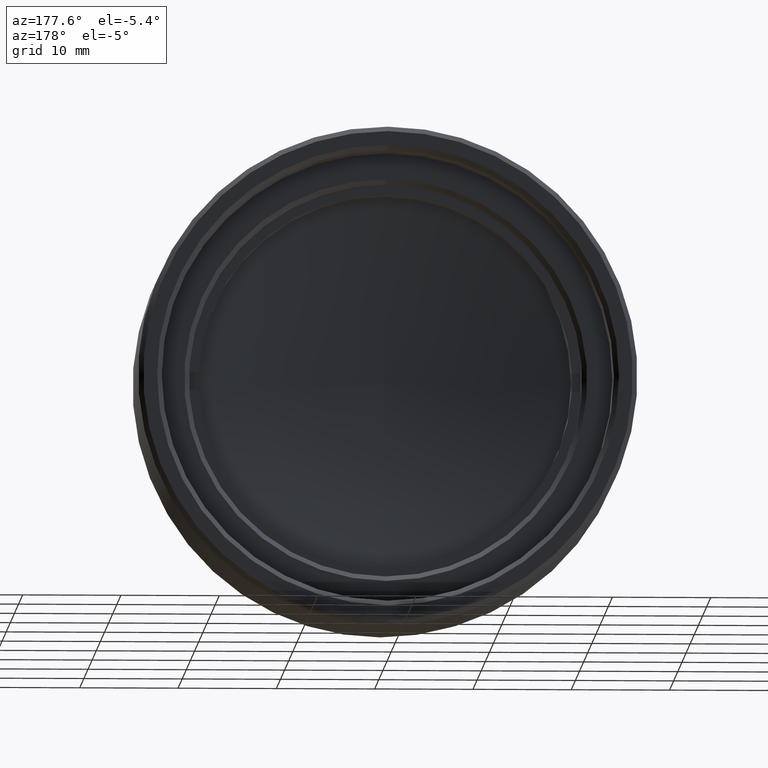
[diagram: clean part render]
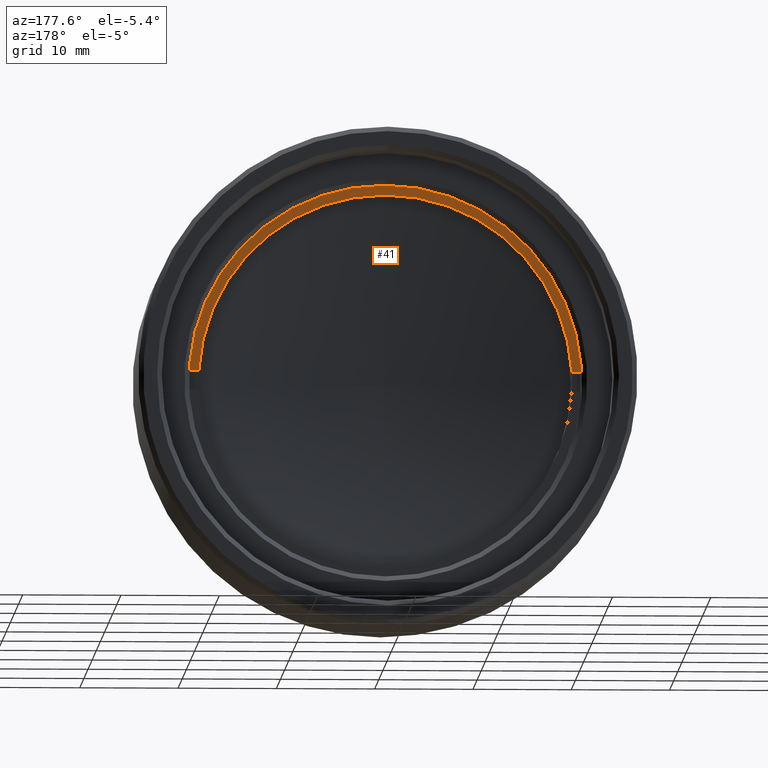
[diagram: same view with one face highlighted and labeled with its STEP entity id]
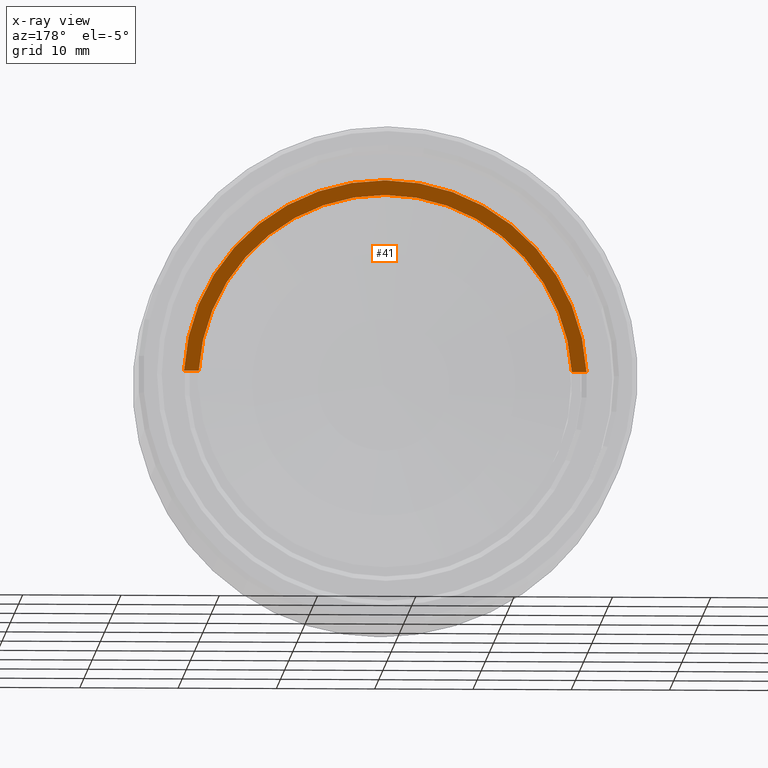
[diagram: x-ray of the same camera — body ghosted, the highlighted face saturated]
A machine part, auxiliary view. The second image highlights one B-rep face of the part: STEP entity #41.
The next image is the same camera in x-ray: the body ghosted, the highlighted face saturated — about 0% of this face is hidden behind the body in this view.
In plain terms, the highlighted planar face has unit normal (0, -1, 0).
Its self-contained STEP definition (entity closure, byte-faithful):
#19 = ORIENTED_EDGE ( 'NONE', *, *, #1125, .T. ) ;
#41 = ADVANCED_FACE ( 'NONE', ( #985 ), #185, .F. ) ;
#88 = ORIENTED_EDGE ( 'NONE', *, *, #1349, .F. ) ;
#103 = EDGE_CURVE ( 'NONE', #1320, #382, #1078, .T. ) ;
#114 = CARTESIAN_POINT ( 'NONE',  ( -35.75775791381426671, -8.080281845166156884, 27.65036394347453097 ) ) ;
#150 = LINE ( 'NONE', #1455, #1300 ) ;
#152 = VERTEX_POINT ( 'NONE', #1681 ) ;
#180 = VERTEX_POINT ( 'NONE', #1037 ) ;
#185 = PLANE ( 'NONE',  #715 ) ;
#194 = CARTESIAN_POINT ( 'NONE',  ( -8.905217641199669742, -8.080281845166151555, 26.65036394347453097 ) ) ;
#210 = CARTESIAN_POINT ( 'NONE',  ( -8.905217641199669742, -8.080281845166151555, 26.65036394347453097 ) ) ;
#293 = AXIS2_PLACEMENT_3D ( 'NONE', #210, #773, #604 ) ;
#325 = CARTESIAN_POINT ( 'NONE',  ( -8.905217641199669742, -8.080281845166151555, 26.65036394347453097 ) ) ;
#336 = EDGE_CURVE ( 'NONE', #1649, #152, #150, .T. ) ;
#382 = VERTEX_POINT ( 'NONE', #922 ) ;
#507 = CIRCLE ( 'NONE', #293, 20.50000000000000355 ) ;
#538 = DIRECTION ( 'NONE',  ( 1.000000000000000000, 0.000000000000000000, 0.000000000000000000 ) ) ;
#585 = EDGE_CURVE ( 'NONE', #152, #1320, #815, .T. ) ;
#604 = DIRECTION ( 'NONE',  ( 0.000000000000000000, 0.000000000000000000, 1.000000000000000000 ) ) ;
#671 = LINE ( 'NONE', #114, #770 ) ;
#715 = AXIS2_PLACEMENT_3D ( 'NONE', #1109, #1520, #1248 ) ;
#720 = DIRECTION ( 'NONE',  ( 0.000000000000000000, 0.000000000000000000, 1.000000000000000000 ) ) ;
#727 = AXIS2_PLACEMENT_3D ( 'NONE', #325, #1122, #861 ) ;
#731 = DIRECTION ( 'NONE',  ( 0.000000000000000000, 1.000000000000000000, 0.000000000000000000 ) ) ;
#755 = EDGE_LOOP ( 'NONE', ( #19, #1338, #88, #1367, #895, #762 ) ) ;
#762 = ORIENTED_EDGE ( 'NONE', *, *, #336, .F. ) ;
#770 = VECTOR ( 'NONE', #1053, 1000.000000000000000 ) ;
#773 = DIRECTION ( 'NONE',  ( 0.000000000000000000, 1.000000000000000000, 0.000000000000000000 ) ) ;
#815 = CIRCLE ( 'NONE', #727, 19.00000000000000355 ) ;
#851 = CARTESIAN_POINT ( 'NONE',  ( -8.905217641199669742, -8.080281845166151555, 26.65036394347453097 ) ) ;
#861 = DIRECTION ( 'NONE',  ( 0.000000000000000000, 0.000000000000000000, 1.000000000000000000 ) ) ;
#874 = AXIS2_PLACEMENT_3D ( 'NONE', #851, #1091, #720 ) ;
#895 = ORIENTED_EDGE ( 'NONE', *, *, #585, .F. ) ;
#912 = CARTESIAN_POINT ( 'NONE',  ( -8.905217641199669742, -8.080281845166151555, 45.65036394347453097 ) ) ;
#922 = CARTESIAN_POINT ( 'NONE',  ( 10.06844831981062960, -8.080281845166151555, 27.65036394347453097 ) ) ;
#985 = FACE_OUTER_BOUND ( 'NONE', #755, .T. ) ;
#1037 = CARTESIAN_POINT ( 'NONE',  ( 11.57037758824357887, -8.080281845166156884, 27.65036394347453097 ) ) ;
#1051 = VERTEX_POINT ( 'NONE', #1353 ) ;
#1053 = DIRECTION ( 'NONE',  ( 1.000000000000000000, 0.000000000000000000, 0.000000000000000000 ) ) ;
#1078 = CIRCLE ( 'NONE', #1718, 19.00000000000000355 ) ;
#1091 = DIRECTION ( 'NONE',  ( 0.000000000000000000, 1.000000000000000000, 0.000000000000000000 ) ) ;
#1092 = DIRECTION ( 'NONE',  ( 0.000000000000000000, 0.000000000000000000, 1.000000000000000000 ) ) ;
#1109 = CARTESIAN_POINT ( 'NONE',  ( 10.09478235880033026, -8.080281845166156884, 26.65036394347453097 ) ) ;
#1122 = DIRECTION ( 'NONE',  ( 0.000000000000000000, 1.000000000000000000, 0.000000000000000000 ) ) ;
#1125 = EDGE_CURVE ( 'NONE', #1649, #1051, #1366, .T. ) ;
#1248 = DIRECTION ( 'NONE',  ( 0.000000000000000000, 0.000000000000000000, -1.000000000000000000 ) ) ;
#1300 = VECTOR ( 'NONE', #538, 1000.000000000000000 ) ;
#1320 = VERTEX_POINT ( 'NONE', #912 ) ;
#1327 = EDGE_CURVE ( 'NONE', #1051, #180, #507, .T. ) ;
#1338 = ORIENTED_EDGE ( 'NONE', *, *, #1327, .T. ) ;
#1349 = EDGE_CURVE ( 'NONE', #382, #180, #671, .T. ) ;
#1353 = CARTESIAN_POINT ( 'NONE',  ( -8.905217641199669742, -8.080281845166151555, 47.15036394347453808 ) ) ;
#1366 = CIRCLE ( 'NONE', #874, 20.50000000000000355 ) ;
#1367 = ORIENTED_EDGE ( 'NONE', *, *, #103, .F. ) ;
#1455 = CARTESIAN_POINT ( 'NONE',  ( -35.75775791381426671, -8.080281845166156884, 27.65036394347453097 ) ) ;
#1520 = DIRECTION ( 'NONE',  ( 0.000000000000000000, -1.000000000000000000, 0.000000000000000000 ) ) ;
#1649 = VERTEX_POINT ( 'NONE', #1720 ) ;
#1681 = CARTESIAN_POINT ( 'NONE',  ( -27.87888360220997086, -8.080281845166151555, 27.65036394347453097 ) ) ;
#1718 = AXIS2_PLACEMENT_3D ( 'NONE', #194, #731, #1092 ) ;
#1720 = CARTESIAN_POINT ( 'NONE',  ( -29.38081287064296987, -8.080281845166156884, 27.65036394347453097 ) ) ;